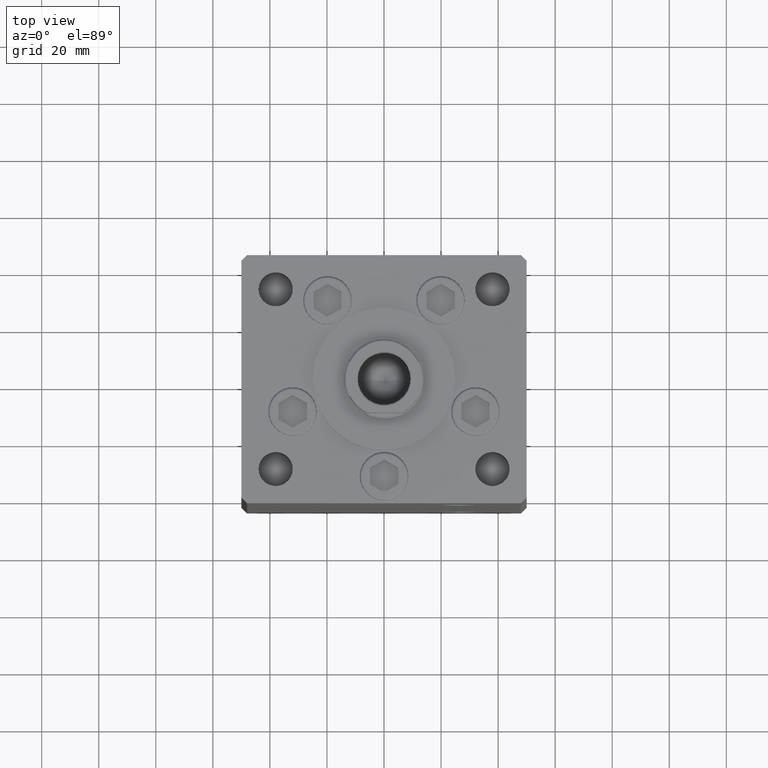
[diagram: clean part render]
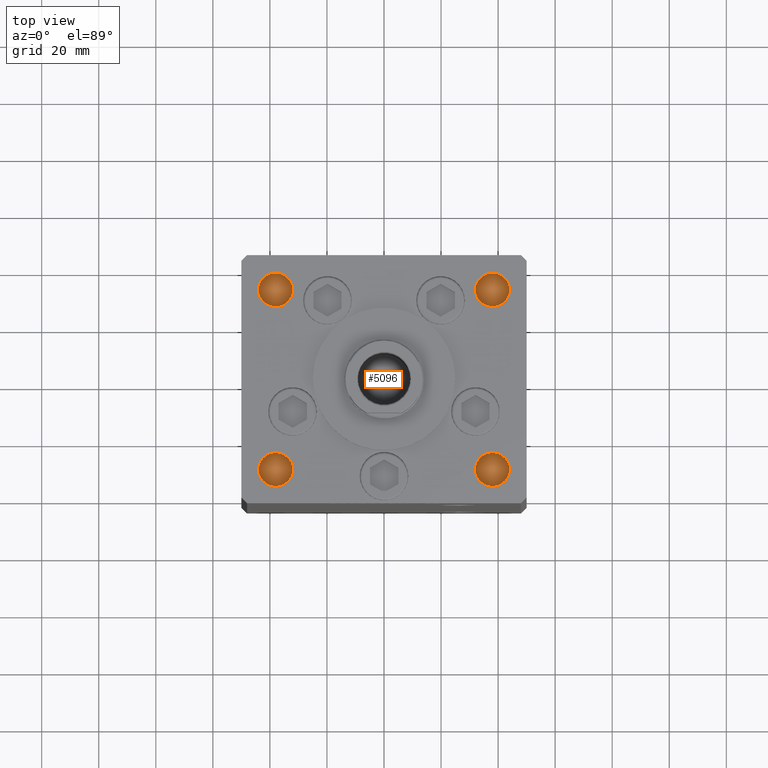
[diagram: same view with one face highlighted and labeled with its STEP entity id]
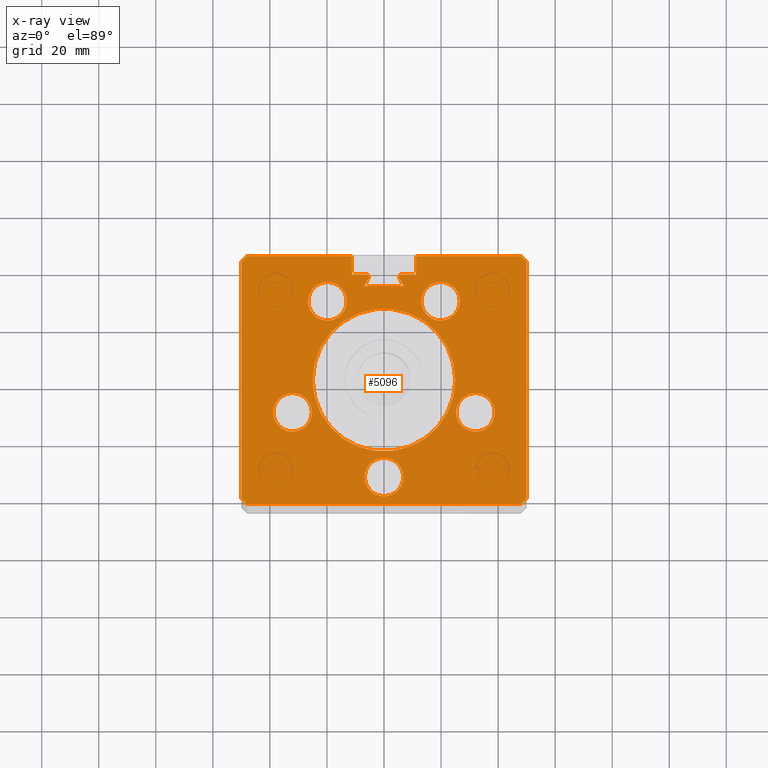
[diagram: x-ray of the same camera — body ghosted, the highlighted face saturated]
A machine part, top view. The second image highlights one B-rep face of the part: STEP entity #5096.
The next image is the same camera in x-ray: the body ghosted, the highlighted face saturated — about 0% of this face is hidden behind the body in this view.
In plain terms, the highlighted planar face has unit normal (0, 0, -1).
Its self-contained STEP definition (entity closure, byte-faithful):
#24 = VERTEX_POINT ( 'NONE', #46639 ) ;
#76 = ORIENTED_EDGE ( 'NONE', *, *, #46713, .F. ) ;
#111 = ORIENTED_EDGE ( 'NONE', *, *, #17602, .F. ) ;
#331 = ORIENTED_EDGE ( 'NONE', *, *, #1221, .F. ) ;
#438 = VECTOR ( 'NONE', #30805, 1000.000000000000000 ) ;
#441 = DIRECTION ( 'NONE',  ( -0.000000000000000000, 0.000000000000000000, 1.000000000000000000 ) ) ;
#827 = LINE ( 'NONE', #1091, #19076 ) ;
#1091 = CARTESIAN_POINT ( 'NONE',  ( -48.00000000000000711, 43.50000000000000000, 168.5000000000000000 ) ) ;
#1173 = LINE ( 'NONE', #42063, #32240 ) ;
#1221 = EDGE_CURVE ( 'NONE', #2830, #4822, #29513, .T. ) ;
#2462 = FACE_BOUND ( 'NONE', #32337, .T. ) ;
#2654 = CARTESIAN_POINT ( 'NONE',  ( -50.00000000000001421, 41.49999999999999289, 168.5000000000000000 ) ) ;
#2830 = VERTEX_POINT ( 'NONE', #21679 ) ;
#2841 = LINE ( 'NONE', #14739, #438 ) ;
#3078 = ORIENTED_EDGE ( 'NONE', *, *, #12911, .F. ) ;
#3205 = CARTESIAN_POINT ( 'NONE',  ( 38.80550741379015989, -11.33333333333332682, 168.5000000000000000 ) ) ;
#3206 = CARTESIAN_POINT ( 'NONE',  ( 6.750000000000003553, -34.00000000000000000, 168.5000000000000000 ) ) ;
#3322 = CARTESIAN_POINT ( 'NONE',  ( 32.05550741379015989, -11.33333333333332682, 168.5000000000000000 ) ) ;
#3520 = CARTESIAN_POINT ( 'NONE',  ( 48.00000000000000711, 43.50000000000000000, 168.5000000000000000 ) ) ;
#3640 = VERTEX_POINT ( 'NONE', #52169 ) ;
#4179 = CIRCLE ( 'NONE', #38725, 6.749999999999999112 ) ;
#4340 = ORIENTED_EDGE ( 'NONE', *, *, #13214, .F. ) ;
#4822 = VERTEX_POINT ( 'NONE', #51600 ) ;
#4927 = AXIS2_PLACEMENT_3D ( 'NONE', #30978, #23562, #39690 ) ;
#5096 = ADVANCED_FACE ( 'NONE', ( #22499, #38615, #2462, #46797, #42837, #6685, #22755 ), #51013, .F. ) ;
#5170 = CARTESIAN_POINT ( 'NONE',  ( -25.30550741379015989, -11.33333333333333570, 168.5000000000000000 ) ) ;
#5452 = EDGE_CURVE ( 'NONE', #6076, #4822, #48225, .T. ) ;
#6076 = VERTEX_POINT ( 'NONE', #13522 ) ;
#6382 = CARTESIAN_POINT ( 'NONE',  ( 50.00000000000001421, 41.49999999999999289, 168.5000000000000000 ) ) ;
#6685 = FACE_OUTER_BOUND ( 'NONE', #49651, .T. ) ;
#6708 = ORIENTED_EDGE ( 'NONE', *, *, #18354, .F. ) ;
#6712 = EDGE_CURVE ( 'NONE', #12740, #51450, #47096, .T. ) ;
#6866 = EDGE_LOOP ( 'NONE', ( #24966, #47111 ) ) ;
#6884 = EDGE_CURVE ( 'NONE', #34210, #18649, #48778, .T. ) ;
#7253 = VERTEX_POINT ( 'NONE', #3205 ) ;
#7347 = DIRECTION ( 'NONE',  ( 0.000000000000000000, 0.000000000000000000, 1.000000000000000000 ) ) ;
#7888 = ORIENTED_EDGE ( 'NONE', *, *, #43109, .T. ) ;
#7900 = AXIS2_PLACEMENT_3D ( 'NONE', #8208, #36430, #12432 ) ;
#8208 = CARTESIAN_POINT ( 'NONE',  ( -32.05550741379015989, -11.33333333333333570, 168.5000000000000000 ) ) ;
#8397 = AXIS2_PLACEMENT_3D ( 'NONE', #9752, #21090, #21612 ) ;
#9338 = VECTOR ( 'NONE', #24738, 1000.000000000000000 ) ;
#9752 = CARTESIAN_POINT ( 'NONE',  ( 32.05550741379015989, -11.33333333333332682, 168.5000000000000000 ) ) ;
#10081 = DIRECTION ( 'NONE',  ( -3.344045254895050973E-16, -1.000000000000000000, 0.000000000000000000 ) ) ;
#10375 = DIRECTION ( 'NONE',  ( -0.7071067811865474617, -0.7071067811865474617, 0.000000000000000000 ) ) ;
#10437 = CARTESIAN_POINT ( 'NONE',  ( -19.82068048781374259, 27.62500000000000355, 168.5000000000000000 ) ) ;
#10833 = DIRECTION ( 'NONE',  ( 0.7071067811865474617, -0.7071067811865474617, 0.000000000000000000 ) ) ;
#10861 = LINE ( 'NONE', #6382, #35571 ) ;
#11251 = DIRECTION ( 'NONE',  ( 0.000000000000000000, 0.000000000000000000, 1.000000000000000000 ) ) ;
#11320 = ORIENTED_EDGE ( 'NONE', *, *, #23148, .F. ) ;
#11388 = CARTESIAN_POINT ( 'NONE',  ( -19.82068048781374259, 27.62500000000000355, 168.5000000000000000 ) ) ;
#11500 = CARTESIAN_POINT ( 'NONE',  ( 4.163799117101000559E-15, -34.00000000000000000, 168.5000000000000000 ) ) ;
#12124 = DIRECTION ( 'NONE',  ( -1.000000000000000000, 0.000000000000000000, 0.000000000000000000 ) ) ;
#12228 = LINE ( 'NONE', #3520, #13049 ) ;
#12267 = VERTEX_POINT ( 'NONE', #37089 ) ;
#12432 = DIRECTION ( 'NONE',  ( 1.000000000000000000, 0.000000000000000000, 0.000000000000000000 ) ) ;
#12502 = CARTESIAN_POINT ( 'NONE',  ( -38.80550741379015989, -11.33333333333333570, 168.5000000000000000 ) ) ;
#12541 = ORIENTED_EDGE ( 'NONE', *, *, #50382, .T. ) ;
#12740 = VERTEX_POINT ( 'NONE', #50932 ) ;
#12900 = DIRECTION ( 'NONE',  ( 0.000000000000000000, 0.000000000000000000, 1.000000000000000000 ) ) ;
#12911 = EDGE_CURVE ( 'NONE', #51450, #12740, #47955, .T. ) ;
#13049 = VECTOR ( 'NONE', #47849, 1000.000000000000000 ) ;
#13052 = DIRECTION ( 'NONE',  ( -0.000000000000000000, -1.000000000000000000, 0.000000000000000000 ) ) ;
#13214 = EDGE_CURVE ( 'NONE', #12267, #44935, #4179, .T. ) ;
#13522 = CARTESIAN_POINT ( 'NONE',  ( -11.24999999999999822, 36.99999999999999289, 168.5000000000000000 ) ) ;
#13658 = ORIENTED_EDGE ( 'NONE', *, *, #18873, .T. ) ;
#13772 = EDGE_CURVE ( 'NONE', #18307, #38247, #15983, .T. ) ;
#13841 = VERTEX_POINT ( 'NONE', #48161 ) ;
#13942 = CARTESIAN_POINT ( 'NONE',  ( 4.163799117101000559E-15, -34.00000000000000000, 168.5000000000000000 ) ) ;
#14132 = EDGE_LOOP ( 'NONE', ( #6708, #44339 ) ) ;
#14140 = DIRECTION ( 'NONE',  ( 0.000000000000000000, 0.000000000000000000, 1.000000000000000000 ) ) ;
#14276 = CARTESIAN_POINT ( 'NONE',  ( -49.99999999999998579, -41.49999999999999289, 168.5000000000000000 ) ) ;
#14351 = CIRCLE ( 'NONE', #21073, 6.749999999999999112 ) ;
#14540 = EDGE_CURVE ( 'NONE', #21025, #7253, #50553, .T. ) ;
#14673 = CARTESIAN_POINT ( 'NONE',  ( -6.183333333333997928, 36.99999999999999289, 168.5000000000000000 ) ) ;
#14739 = CARTESIAN_POINT ( 'NONE',  ( -47.99999999999998579, -43.50000000000000000, 168.5000000000000000 ) ) ;
#14876 = CARTESIAN_POINT ( 'NONE',  ( 0.000000000000000000, 0.000000000000000000, 168.5000000000000000 ) ) ;
#15375 = VECTOR ( 'NONE', #34339, 1000.000000000000000 ) ;
#15598 = VERTEX_POINT ( 'NONE', #36813 ) ;
#15643 = CARTESIAN_POINT ( 'NONE',  ( -6.183333333333997928, 36.06666666666598786, 168.5000000000000000 ) ) ;
#15729 = EDGE_LOOP ( 'NONE', ( #39774, #11320 ) ) ;
#15827 = CARTESIAN_POINT ( 'NONE',  ( 0.000000000000000000, 36.99999999999999289, 168.5000000000000000 ) ) ;
#15935 = VERTEX_POINT ( 'NONE', #21956 ) ;
#15983 = CIRCLE ( 'NONE', #27743, 6.749999999999999112 ) ;
#16304 = DIRECTION ( 'NONE',  ( 0.000000000000000000, 1.000000000000000000, 0.000000000000000000 ) ) ;
#16441 = VERTEX_POINT ( 'NONE', #39172 ) ;
#16470 = DIRECTION ( 'NONE',  ( -1.000000000000000000, 0.000000000000000000, 0.000000000000000000 ) ) ;
#16885 = VERTEX_POINT ( 'NONE', #24037 ) ;
#17128 = CIRCLE ( 'NONE', #21330, 6.749999999999999112 ) ;
#17177 = CARTESIAN_POINT ( 'NONE',  ( 0.000000000000000000, 0.000000000000000000, 168.5000000000000000 ) ) ;
#17258 = EDGE_CURVE ( 'NONE', #34210, #16441, #32674, .T. ) ;
#17315 = DIRECTION ( 'NONE',  ( 1.000000000000000000, 0.000000000000000000, 0.000000000000000000 ) ) ;
#17602 = EDGE_CURVE ( 'NONE', #51504, #38181, #23260, .T. ) ;
#18307 = VERTEX_POINT ( 'NONE', #51909 ) ;
#18339 = VERTEX_POINT ( 'NONE', #5170 ) ;
#18354 = EDGE_CURVE ( 'NONE', #45050, #3640, #32230, .T. ) ;
#18465 = VERTEX_POINT ( 'NONE', #14673 ) ;
#18615 = VECTOR ( 'NONE', #10375, 1000.000000000000114 ) ;
#18649 = VERTEX_POINT ( 'NONE', #43929 ) ;
#18755 = DIRECTION ( 'NONE',  ( 3.344045254895050973E-16, -1.000000000000000000, 0.000000000000000000 ) ) ;
#18873 = EDGE_CURVE ( 'NONE', #30255, #43035, #38547, .T. ) ;
#18976 = EDGE_CURVE ( 'NONE', #24, #27858, #40873, .T. ) ;
#19076 = VECTOR ( 'NONE', #49632, 1000.000000000000000 ) ;
#19117 = AXIS2_PLACEMENT_3D ( 'NONE', #26966, #38345, #51002 ) ;
#19421 = DIRECTION ( 'NONE',  ( 1.000000000000000000, 0.000000000000000000, 0.000000000000000000 ) ) ;
#19484 = DIRECTION ( 'NONE',  ( 1.000000000000000000, 0.000000000000000000, 0.000000000000000000 ) ) ;
#19583 = EDGE_CURVE ( 'NONE', #15598, #15935, #1173, .T. ) ;
#19648 = LINE ( 'NONE', #48135, #51927 ) ;
#20057 = EDGE_CURVE ( 'NONE', #7253, #21025, #31137, .T. ) ;
#20682 = AXIS2_PLACEMENT_3D ( 'NONE', #15643, #23799, #25354 ) ;
#20755 = CARTESIAN_POINT ( 'NONE',  ( -11.24999999999999822, 0.000000000000000000, 168.5000000000000000 ) ) ;
#20992 = CARTESIAN_POINT ( 'NONE',  ( 0.000000000000000000, 0.000000000000000000, 168.5000000000000000 ) ) ;
#20999 = ORIENTED_EDGE ( 'NONE', *, *, #34591, .F. ) ;
#21025 = VERTEX_POINT ( 'NONE', #49084 ) ;
#21073 = AXIS2_PLACEMENT_3D ( 'NONE', #31834, #27341, #47940 ) ;
#21090 = DIRECTION ( 'NONE',  ( 0.000000000000000000, 0.000000000000000000, 1.000000000000000000 ) ) ;
#21252 = VECTOR ( 'NONE', #23730, 1000.000000000000000 ) ;
#21330 = AXIS2_PLACEMENT_3D ( 'NONE', #11388, #52016, #35648 ) ;
#21612 = DIRECTION ( 'NONE',  ( 1.000000000000000000, 0.000000000000000000, 0.000000000000000000 ) ) ;
#21679 = CARTESIAN_POINT ( 'NONE',  ( -48.00000000000000711, 43.50000000000000000, 168.5000000000000000 ) ) ;
#21834 = DIRECTION ( 'NONE',  ( 1.000000000000000000, 0.000000000000000000, 0.000000000000000000 ) ) ;
#21872 = AXIS2_PLACEMENT_3D ( 'NONE', #3322, #11251, #19421 ) ;
#21956 = CARTESIAN_POINT ( 'NONE',  ( 11.24999999999999822, 36.99999999999999289, 168.5000000000000000 ) ) ;
#22272 = ORIENTED_EDGE ( 'NONE', *, *, #5452, .T. ) ;
#22375 = AXIS2_PLACEMENT_3D ( 'NONE', #17177, #45149, #33781 ) ;
#22499 = FACE_BOUND ( 'NONE', #15729, .T. ) ;
#22755 = FACE_BOUND ( 'NONE', #14132, .T. ) ;
#22843 = VERTEX_POINT ( 'NONE', #40860 ) ;
#23015 = DIRECTION ( 'NONE',  ( -1.000000000000000000, 0.000000000000000000, -0.000000000000000000 ) ) ;
#23148 = EDGE_CURVE ( 'NONE', #49097, #18339, #14351, .T. ) ;
#23260 = LINE ( 'NONE', #46784, #18615 ) ;
#23562 = DIRECTION ( 'NONE',  ( 0.000000000000000000, 0.000000000000000000, -1.000000000000000000 ) ) ;
#23677 = CARTESIAN_POINT ( 'NONE',  ( -25.00000000000000000, 0.000000000000000000, 168.5000000000000000 ) ) ;
#23730 = DIRECTION ( 'NONE',  ( 0.4999999999999996114, 0.8660254037844388186, 0.000000000000000000 ) ) ;
#23799 = DIRECTION ( 'NONE',  ( 0.000000000000000000, 0.000000000000000000, -1.000000000000000000 ) ) ;
#23831 = ORIENTED_EDGE ( 'NONE', *, *, #14540, .F. ) ;
#24037 = CARTESIAN_POINT ( 'NONE',  ( -47.99999999999998579, -43.50000000000000000, 168.5000000000000000 ) ) ;
#24738 = DIRECTION ( 'NONE',  ( 0.4999999999999996114, -0.8660254037844388186, 0.000000000000000000 ) ) ;
#24966 = ORIENTED_EDGE ( 'NONE', *, *, #40023, .F. ) ;
#25139 = AXIS2_PLACEMENT_3D ( 'NONE', #43497, #7347, #19484 ) ;
#25354 = DIRECTION ( 'NONE',  ( 1.000000000000000000, 0.000000000000000000, 0.000000000000000000 ) ) ;
#25536 = CARTESIAN_POINT ( 'NONE',  ( -49.99999999999998579, -41.49999999999999289, 168.5000000000000000 ) ) ;
#25549 = DIRECTION ( 'NONE',  ( 1.000000000000000000, 0.000000000000000000, 0.000000000000000000 ) ) ;
#26262 = VECTOR ( 'NONE', #37301, 1000.000000000000000 ) ;
#26421 = LINE ( 'NONE', #30115, #15375 ) ;
#26488 = ORIENTED_EDGE ( 'NONE', *, *, #20057, .F. ) ;
#26547 = ORIENTED_EDGE ( 'NONE', *, *, #19583, .T. ) ;
#26897 = EDGE_CURVE ( 'NONE', #43035, #16885, #51460, .T. ) ;
#26966 = CARTESIAN_POINT ( 'NONE',  ( -6.183333333333997928, 36.06666666666598786, 168.5000000000000000 ) ) ;
#27052 = DIRECTION ( 'NONE',  ( 1.000000000000000000, 0.000000000000000000, 0.000000000000000000 ) ) ;
#27273 = CIRCLE ( 'NONE', #7900, 6.749999999999999112 ) ;
#27341 = DIRECTION ( 'NONE',  ( 0.000000000000000000, 0.000000000000000000, 1.000000000000000000 ) ) ;
#27743 = AXIS2_PLACEMENT_3D ( 'NONE', #11500, #47126, #27052 ) ;
#27801 = VECTOR ( 'NONE', #10833, 1000.000000000000114 ) ;
#27858 = VERTEX_POINT ( 'NONE', #37634 ) ;
#28694 = CARTESIAN_POINT ( 'NONE',  ( -50.00000000000001421, 41.49999999999999289, 168.5000000000000000 ) ) ;
#28801 = ORIENTED_EDGE ( 'NONE', *, *, #6712, .F. ) ;
#29490 = DIRECTION ( 'NONE',  ( 0.000000000000000000, 0.000000000000000000, 1.000000000000000000 ) ) ;
#29513 = LINE ( 'NONE', #33472, #30048 ) ;
#29844 = AXIS2_PLACEMENT_3D ( 'NONE', #13942, #29490, #21834 ) ;
#30048 = VECTOR ( 'NONE', #25549, 1000.000000000000000 ) ;
#30115 = CARTESIAN_POINT ( 'NONE',  ( -11.24999999999999822, 43.50000000000000000, 168.5000000000000000 ) ) ;
#30255 = VERTEX_POINT ( 'NONE', #28694 ) ;
#30805 = DIRECTION ( 'NONE',  ( 1.000000000000000000, 0.000000000000000000, 0.000000000000000000 ) ) ;
#30951 = DIRECTION ( 'NONE',  ( 0.000000000000000000, 0.000000000000000000, -1.000000000000000000 ) ) ;
#30978 = CARTESIAN_POINT ( 'NONE',  ( 6.183333333333997928, 36.06666666666598786, 168.5000000000000000 ) ) ;
#31137 = CIRCLE ( 'NONE', #8397, 6.749999999999999112 ) ;
#31768 = EDGE_CURVE ( 'NONE', #18465, #6076, #36385, .T. ) ;
#31834 = CARTESIAN_POINT ( 'NONE',  ( -32.05550741379015989, -11.33333333333333570, 168.5000000000000000 ) ) ;
#32230 = CIRCLE ( 'NONE', #35604, 25.00000000000000000 ) ;
#32240 = VECTOR ( 'NONE', #13052, 1000.000000000000000 ) ;
#32335 = EDGE_CURVE ( 'NONE', #15935, #18649, #45477, .T. ) ;
#32337 = EDGE_LOOP ( 'NONE', ( #26488, #23831 ) ) ;
#32674 = LINE ( 'NONE', #48773, #9338 ) ;
#33472 = CARTESIAN_POINT ( 'NONE',  ( -11.24999999999999822, 43.50000000000000000, 168.5000000000000000 ) ) ;
#33611 = CARTESIAN_POINT ( 'NONE',  ( 5.375042956467943611, 35.59999999999898534, 168.5000000000000000 ) ) ;
#33781 = DIRECTION ( 'NONE',  ( 1.000000000000000000, 0.000000000000000000, 0.000000000000000000 ) ) ;
#33908 = CARTESIAN_POINT ( 'NONE',  ( 26.57068048781373193, 27.62500000000000711, 168.5000000000000000 ) ) ;
#34210 = VERTEX_POINT ( 'NONE', #33611 ) ;
#34339 = DIRECTION ( 'NONE',  ( 1.000000000000000000, 0.000000000000000000, 0.000000000000000000 ) ) ;
#34588 = EDGE_CURVE ( 'NONE', #15598, #22843, #26421, .T. ) ;
#34591 = EDGE_CURVE ( 'NONE', #13841, #51504, #10861, .T. ) ;
#35571 = VECTOR ( 'NONE', #10081, 1000.000000000000000 ) ;
#35604 = AXIS2_PLACEMENT_3D ( 'NONE', #20992, #441, #17315 ) ;
#35648 = DIRECTION ( 'NONE',  ( 1.000000000000000000, 0.000000000000000000, 0.000000000000000000 ) ) ;
#36086 = VERTEX_POINT ( 'NONE', #39419 ) ;
#36385 = LINE ( 'NONE', #15827, #49909 ) ;
#36430 = DIRECTION ( 'NONE',  ( 0.000000000000000000, 0.000000000000000000, 1.000000000000000000 ) ) ;
#36813 = CARTESIAN_POINT ( 'NONE',  ( 11.24999999999999112, 43.50000000000000000, 168.5000000000000000 ) ) ;
#36834 = ORIENTED_EDGE ( 'NONE', *, *, #34588, .F. ) ;
#36894 = CARTESIAN_POINT ( 'NONE',  ( 19.82068048781373548, 27.62500000000000711, 168.5000000000000000 ) ) ;
#37089 = CARTESIAN_POINT ( 'NONE',  ( -26.57068048781373903, 27.62500000000000355, 168.5000000000000000 ) ) ;
#37301 = DIRECTION ( 'NONE',  ( -1.000000000000000000, 0.000000000000000000, 0.000000000000000000 ) ) ;
#37324 = EDGE_CURVE ( 'NONE', #44935, #12267, #17128, .T. ) ;
#37634 = CARTESIAN_POINT ( 'NONE',  ( -5.375042956467943611, 35.59999999999898534, 168.5000000000000000 ) ) ;
#38181 = VERTEX_POINT ( 'NONE', #43314 ) ;
#38247 = VERTEX_POINT ( 'NONE', #3206 ) ;
#38304 = EDGE_CURVE ( 'NONE', #18339, #49097, #27273, .T. ) ;
#38345 = DIRECTION ( 'NONE',  ( 0.000000000000000000, 0.000000000000000000, -1.000000000000000000 ) ) ;
#38547 = LINE ( 'NONE', #2654, #45712 ) ;
#38615 = FACE_BOUND ( 'NONE', #6866, .T. ) ;
#38700 = ORIENTED_EDGE ( 'NONE', *, *, #6884, .F. ) ;
#38725 = AXIS2_PLACEMENT_3D ( 'NONE', #10437, #14140, #46322 ) ;
#39172 = CARTESIAN_POINT ( 'NONE',  ( 6.876153656360465050, 32.99999999999986500, 168.5000000000000000 ) ) ;
#39238 = CIRCLE ( 'NONE', #20682, 0.9333333333340008142 ) ;
#39419 = CARTESIAN_POINT ( 'NONE',  ( -5.249999999999996447, 36.06666666666598786, 168.5000000000000000 ) ) ;
#39451 = AXIS2_PLACEMENT_3D ( 'NONE', #14876, #30951, #23015 ) ;
#39690 = DIRECTION ( 'NONE',  ( 1.000000000000000000, 0.000000000000000000, 0.000000000000000000 ) ) ;
#39774 = ORIENTED_EDGE ( 'NONE', *, *, #38304, .F. ) ;
#39824 = ORIENTED_EDGE ( 'NONE', *, *, #51807, .F. ) ;
#40023 = EDGE_CURVE ( 'NONE', #38247, #18307, #51785, .T. ) ;
#40368 = CARTESIAN_POINT ( 'NONE',  ( -19.44653440471352113, 11.22746187336665891, 168.5000000000000000 ) ) ;
#40860 = CARTESIAN_POINT ( 'NONE',  ( 48.00000000000000711, 43.50000000000000000, 168.5000000000000000 ) ) ;
#40873 = LINE ( 'NONE', #40368, #21252 ) ;
#41865 = CIRCLE ( 'NONE', #19117, 0.9333333333340008142 ) ;
#42063 = CARTESIAN_POINT ( 'NONE',  ( 11.24999999999999822, 0.000000000000000000, 168.5000000000000000 ) ) ;
#42660 = ORIENTED_EDGE ( 'NONE', *, *, #26897, .T. ) ;
#42837 = FACE_BOUND ( 'NONE', #46577, .T. ) ;
#42905 = AXIS2_PLACEMENT_3D ( 'NONE', #36894, #12900, #45081 ) ;
#43035 = VERTEX_POINT ( 'NONE', #25536 ) ;
#43109 = EDGE_CURVE ( 'NONE', #16885, #38181, #2841, .T. ) ;
#43314 = CARTESIAN_POINT ( 'NONE',  ( 47.99999999999998579, -43.50000000000000000, 168.5000000000000000 ) ) ;
#43451 = ORIENTED_EDGE ( 'NONE', *, *, #17258, .T. ) ;
#43497 = CARTESIAN_POINT ( 'NONE',  ( 19.82068048781373548, 27.62500000000000711, 168.5000000000000000 ) ) ;
#43759 = EDGE_CURVE ( 'NONE', #36086, #27858, #39238, .T. ) ;
#43929 = CARTESIAN_POINT ( 'NONE',  ( 6.183333333333997928, 36.99999999999999289, 168.5000000000000000 ) ) ;
#44339 = ORIENTED_EDGE ( 'NONE', *, *, #49464, .F. ) ;
#44764 = ORIENTED_EDGE ( 'NONE', *, *, #31768, .T. ) ;
#44809 = ORIENTED_EDGE ( 'NONE', *, *, #37324, .F. ) ;
#44935 = VERTEX_POINT ( 'NONE', #46928 ) ;
#45050 = VERTEX_POINT ( 'NONE', #23677 ) ;
#45081 = DIRECTION ( 'NONE',  ( 1.000000000000000000, 0.000000000000000000, 0.000000000000000000 ) ) ;
#45148 = CIRCLE ( 'NONE', #22375, 25.00000000000000000 ) ;
#45149 = DIRECTION ( 'NONE',  ( -0.000000000000000000, 0.000000000000000000, 1.000000000000000000 ) ) ;
#45203 = ORIENTED_EDGE ( 'NONE', *, *, #49969, .T. ) ;
#45477 = LINE ( 'NONE', #48657, #26262 ) ;
#45712 = VECTOR ( 'NONE', #18755, 1000.000000000000000 ) ;
#46322 = DIRECTION ( 'NONE',  ( 1.000000000000000000, 0.000000000000000000, 0.000000000000000000 ) ) ;
#46577 = EDGE_LOOP ( 'NONE', ( #44809, #4340 ) ) ;
#46639 = CARTESIAN_POINT ( 'NONE',  ( -6.876153656360465050, 32.99999999999986500, 168.5000000000000000 ) ) ;
#46713 = EDGE_CURVE ( 'NONE', #22843, #13841, #12228, .T. ) ;
#46784 = CARTESIAN_POINT ( 'NONE',  ( 49.99999999999998579, -41.49999999999999289, 168.5000000000000000 ) ) ;
#46797 = FACE_BOUND ( 'NONE', #50974, .T. ) ;
#46928 = CARTESIAN_POINT ( 'NONE',  ( -13.07068048781374259, 27.62500000000000355, 168.5000000000000000 ) ) ;
#47096 = CIRCLE ( 'NONE', #25139, 6.749999999999999112 ) ;
#47111 = ORIENTED_EDGE ( 'NONE', *, *, #13772, .F. ) ;
#47126 = DIRECTION ( 'NONE',  ( 0.000000000000000000, 0.000000000000000000, 1.000000000000000000 ) ) ;
#47849 = DIRECTION ( 'NONE',  ( 0.7071067811865487940, -0.7071067811865463515, 0.000000000000000000 ) ) ;
#47940 = DIRECTION ( 'NONE',  ( 1.000000000000000000, 0.000000000000000000, 0.000000000000000000 ) ) ;
#47955 = CIRCLE ( 'NONE', #42905, 6.749999999999999112 ) ;
#48135 = CARTESIAN_POINT ( 'NONE',  ( 0.000000000000000000, 32.99999999999986500, 168.5000000000000000 ) ) ;
#48161 = CARTESIAN_POINT ( 'NONE',  ( 50.00000000000001421, 41.49999999999999289, 168.5000000000000000 ) ) ;
#48225 = LINE ( 'NONE', #20755, #48704 ) ;
#48433 = ORIENTED_EDGE ( 'NONE', *, *, #18976, .T. ) ;
#48657 = CARTESIAN_POINT ( 'NONE',  ( 0.000000000000000000, 36.99999999999999289, 168.5000000000000000 ) ) ;
#48704 = VECTOR ( 'NONE', #16304, 1000.000000000000000 ) ;
#48773 = CARTESIAN_POINT ( 'NONE',  ( 19.44653440471352113, 11.22746187336665891, 168.5000000000000000 ) ) ;
#48778 = CIRCLE ( 'NONE', #4927, 0.9333333333340008142 ) ;
#49084 = CARTESIAN_POINT ( 'NONE',  ( 25.30550741379015989, -11.33333333333332682, 168.5000000000000000 ) ) ;
#49097 = VERTEX_POINT ( 'NONE', #12502 ) ;
#49384 = ORIENTED_EDGE ( 'NONE', *, *, #43759, .F. ) ;
#49464 = EDGE_CURVE ( 'NONE', #3640, #45050, #45148, .T. ) ;
#49632 = DIRECTION ( 'NONE',  ( -0.7071067811865487940, -0.7071067811865463515, 0.000000000000000000 ) ) ;
#49651 = EDGE_LOOP ( 'NONE', ( #44764, #22272, #331, #12541, #13658, #42660, #7888, #111, #20999, #76, #36834, #26547, #51095, #38700, #43451, #45203, #48433, #49384, #39824 ) ) ;
#49909 = VECTOR ( 'NONE', #12124, 1000.000000000000000 ) ;
#49969 = EDGE_CURVE ( 'NONE', #16441, #24, #19648, .T. ) ;
#50382 = EDGE_CURVE ( 'NONE', #2830, #30255, #827, .T. ) ;
#50539 = CARTESIAN_POINT ( 'NONE',  ( 49.99999999999998579, -41.49999999999999289, 168.5000000000000000 ) ) ;
#50553 = CIRCLE ( 'NONE', #21872, 6.749999999999999112 ) ;
#50932 = CARTESIAN_POINT ( 'NONE',  ( 13.07068048781373371, 27.62500000000000711, 168.5000000000000000 ) ) ;
#50974 = EDGE_LOOP ( 'NONE', ( #3078, #28801 ) ) ;
#51002 = DIRECTION ( 'NONE',  ( 1.000000000000000000, 0.000000000000000000, 0.000000000000000000 ) ) ;
#51013 = PLANE ( 'NONE',  #39451 ) ;
#51095 = ORIENTED_EDGE ( 'NONE', *, *, #32335, .T. ) ;
#51450 = VERTEX_POINT ( 'NONE', #33908 ) ;
#51460 = LINE ( 'NONE', #14276, #27801 ) ;
#51504 = VERTEX_POINT ( 'NONE', #50539 ) ;
#51600 = CARTESIAN_POINT ( 'NONE',  ( -11.24999999999999822, 43.50000000000000000, 168.5000000000000000 ) ) ;
#51785 = CIRCLE ( 'NONE', #29844, 6.749999999999999112 ) ;
#51807 = EDGE_CURVE ( 'NONE', #18465, #36086, #41865, .T. ) ;
#51909 = CARTESIAN_POINT ( 'NONE',  ( -6.749999999999994671, -34.00000000000000000, 168.5000000000000000 ) ) ;
#51927 = VECTOR ( 'NONE', #16470, 1000.000000000000000 ) ;
#52016 = DIRECTION ( 'NONE',  ( 0.000000000000000000, 0.000000000000000000, 1.000000000000000000 ) ) ;
#52169 = CARTESIAN_POINT ( 'NONE',  ( 25.00000000000000000, 3.061616997868383043E-15, 168.5000000000000000 ) ) ;